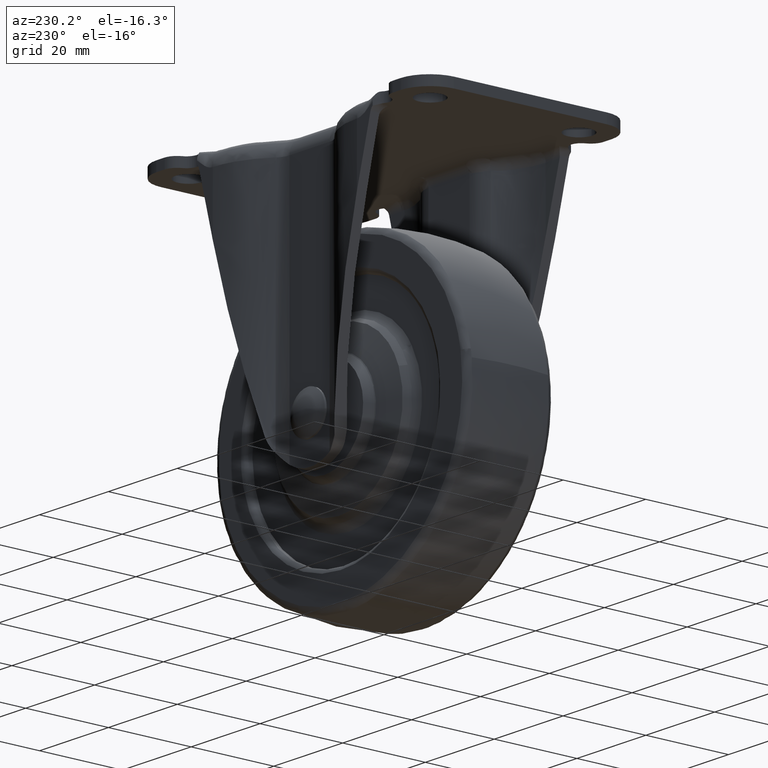
[diagram: clean part render]
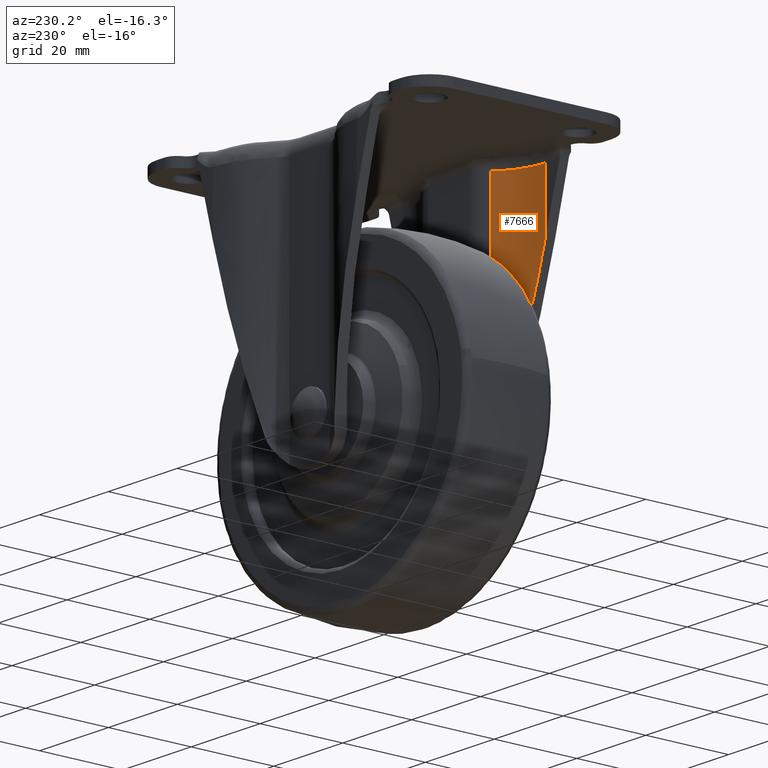
[diagram: same view with one face highlighted and labeled with its STEP entity id]
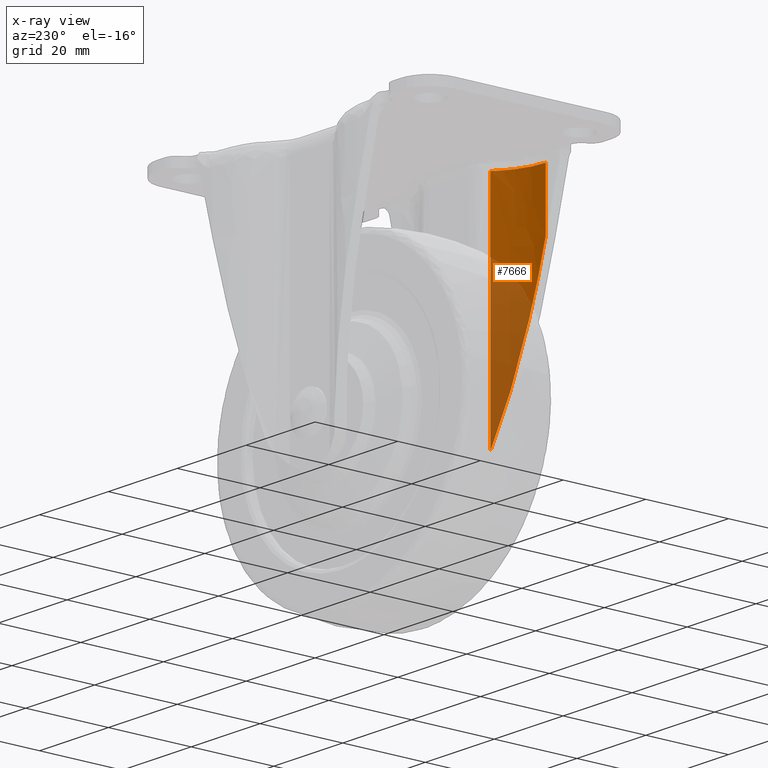
[diagram: x-ray of the same camera — body ghosted, the highlighted face saturated]
A machine part, auxiliary view. The second image highlights one B-rep face of the part: STEP entity #7666.
The next image is the same camera in x-ray: the body ghosted, the highlighted face saturated — about 43% of this face is hidden behind the body in this view.
In plain terms, the highlighted face is a freeform B-spline surface patch.
Its self-contained STEP definition (entity closure, byte-faithful):
#6415=CARTESIAN_POINT('',(-20.916408000000100,-21.699999999999999,-4.300000000000000));
#6416=VERTEX_POINT('',#6415);
#6474=CARTESIAN_POINT('',(-10.078353143452221,-17.358986175115199,-4.300000000000000));
#6475=VERTEX_POINT('',#6474);
#6489=CARTESIAN_POINT('',(-20.916408000000100,-21.699999999999999,-4.300000000000000));
#6490=CARTESIAN_POINT('',(-14.628017882698252,-21.699999999999999,-4.300000000000000));
#6491=CARTESIAN_POINT('',(-10.078353143452210,-17.358986175115209,-4.300000000000000));
#6499=(BOUNDED_CURVE()B_SPLINE_CURVE(2,(#6489,#6490,#6491),.UNSPECIFIED.,.F.,.U.)CURVE()GEOMETRIC_REPRESENTATION_ITEM()QUASI_UNIFORM_CURVE()RATIONAL_B_SPLINE_CURVE((1.0,0.928305527331241,1.0))REPRESENTATION_ITEM(''));
#6500=EDGE_CURVE('',#6416,#6475,#6499,.T.);
#6831=CARTESIAN_POINT('',(-20.916408000000100,-21.699999999999999,-18.380276063724150));
#6832=VERTEX_POINT('',#6831);
#6838=CARTESIAN_POINT('',(-10.135846839228160,-17.413566535437251,-58.241278594452012));
#6839=VERTEX_POINT('',#6838);
#6840=CARTESIAN_POINT('',(-10.135846839228160,-17.413566535437251,-58.241278594452012));
#6841=CARTESIAN_POINT('',(-14.673968075952995,-21.699999999999992,-41.461626830119705));
#6842=CARTESIAN_POINT('',(-20.916408000000100,-21.699999999999999,-18.380276063724160));
#6850=(BOUNDED_CURVE()B_SPLINE_CURVE(2,(#6840,#6841,#6842),.UNSPECIFIED.,.F.,.U.)CURVE()GEOMETRIC_REPRESENTATION_ITEM()QUASI_UNIFORM_CURVE()RATIONAL_B_SPLINE_CURVE((1.0,0.929241292727280,1.0))REPRESENTATION_ITEM(''));
#6851=EDGE_CURVE('',#6839,#6832,#6850,.T.);
#7033=CARTESIAN_POINT('',(-10.078353143452221,-17.358986175115248,-58.445640398596687));
#7034=VERTEX_POINT('',#7033);
#7035=CARTESIAN_POINT('',(-10.135846839228160,-17.413566535437351,-58.241278594452012));
#7036=CARTESIAN_POINT('',(-10.117281489088290,-17.396030834214368,-58.309923765874252));
#7037=CARTESIAN_POINT('',(-10.098110473319540,-17.377837419550229,-58.378041739484587));
#7038=CARTESIAN_POINT('',(-10.078353143452221,-17.358986175115231,-58.445640398596687));
#7039=QUASI_UNIFORM_CURVE('',3,(#7035,#7036,#7037,#7038),.UNSPECIFIED.,.F.,.U.);
#7040=EDGE_CURVE('',#6839,#7034,#7039,.T.);
#7630=CARTESIAN_POINT('',(-10.078353143452221,-17.358986175115248,-58.445640398596687));
#7631=CARTESIAN_POINT('',(-10.078353143452221,-17.358986175115199,-4.300000000000000));
#7632=QUASI_UNIFORM_CURVE('',1,(#7630,#7631),.UNSPECIFIED.,.F.,.U.);
#7633=EDGE_CURVE('',#7034,#6475,#7632,.T.);
#7641=CARTESIAN_POINT('',(-9.718375948279446,-17.004275449507649,-59.799281408561612));
#7642=CARTESIAN_POINT('',(-9.718375948279446,-17.004275449507649,-2.912517964785953));
#7643=CARTESIAN_POINT('',(-14.575319629234912,-21.946737246497175,-59.799281408561612));
#7644=CARTESIAN_POINT('',(-14.575319629234912,-21.946737246497175,-2.912517964785953));
#7645=CARTESIAN_POINT('',(-21.500020260761151,-21.689149012266071,-59.799281408561612));
#7646=CARTESIAN_POINT('',(-21.500020260761151,-21.689149012266071,-2.912517964785952));
#7654=(BOUNDED_SURFACE()B_SPLINE_SURFACE(1,2,((#7641,#7643,#7645),(#7642,#7644,#7646)),.UNSPECIFIED.,.F.,.F.,.U.)B_SPLINE_SURFACE_WITH_KNOTS((2,2),(3,3),(0.0,56.886763443775664),(0.0,13.242650992361730),.UNSPECIFIED.)GEOMETRIC_REPRESENTATION_ITEM()RATIONAL_B_SPLINE_SURFACE(((1.0,0.910871991905395,0.991316279643302),(1.0,0.910871991905395,0.991316279643302)))REPRESENTATION_ITEM('')SURFACE());
#7655=CARTESIAN_POINT('',(-20.916408000000100,-21.699999999999999,-18.380276063724150));
#7656=CARTESIAN_POINT('',(-20.916408000000100,-21.699999999999999,-4.300000000000000));
#7657=QUASI_UNIFORM_CURVE('',1,(#7655,#7656),.UNSPECIFIED.,.F.,.U.);
#7658=EDGE_CURVE('',#6832,#6416,#7657,.T.);
#7659=ORIENTED_EDGE('',*,*,#7658,.T.);
#7660=ORIENTED_EDGE('',*,*,#6500,.T.);
#7661=ORIENTED_EDGE('',*,*,#7633,.F.);
#7662=ORIENTED_EDGE('',*,*,#7040,.F.);
#7663=ORIENTED_EDGE('',*,*,#6851,.T.);
#7664=EDGE_LOOP('',(#7659,#7660,#7661,#7662,#7663));
#7665=FACE_OUTER_BOUND('',#7664,.T.);
#7666=ADVANCED_FACE('',(#7665),#7654,.F.);